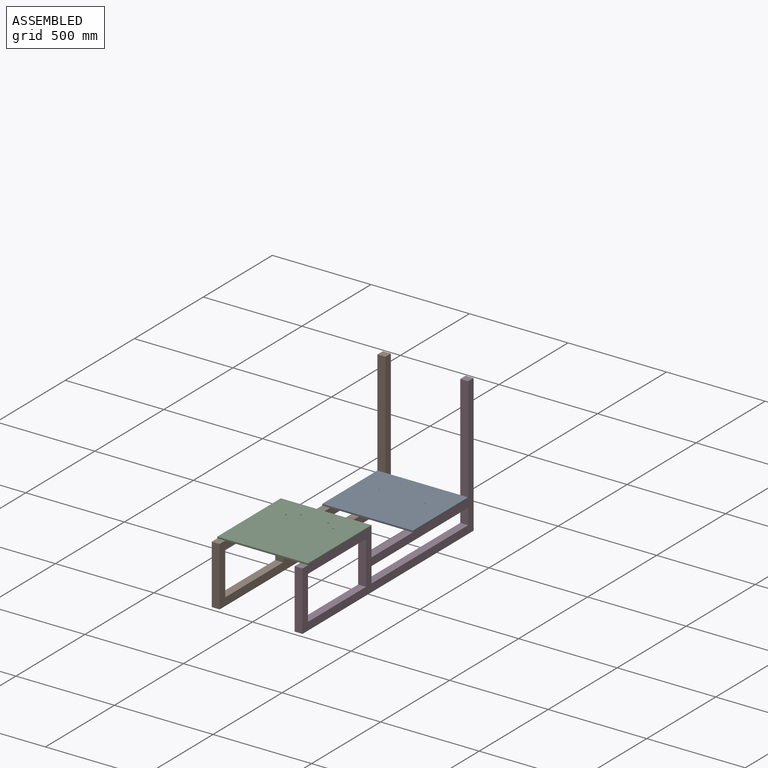
[diagram: assembled view]
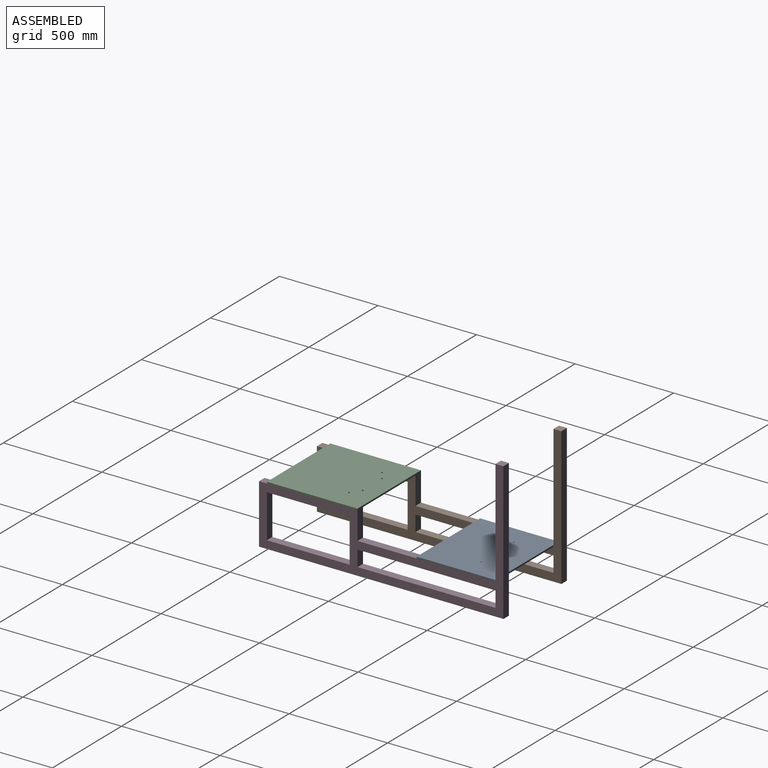
[diagram: assembled view, second angle]
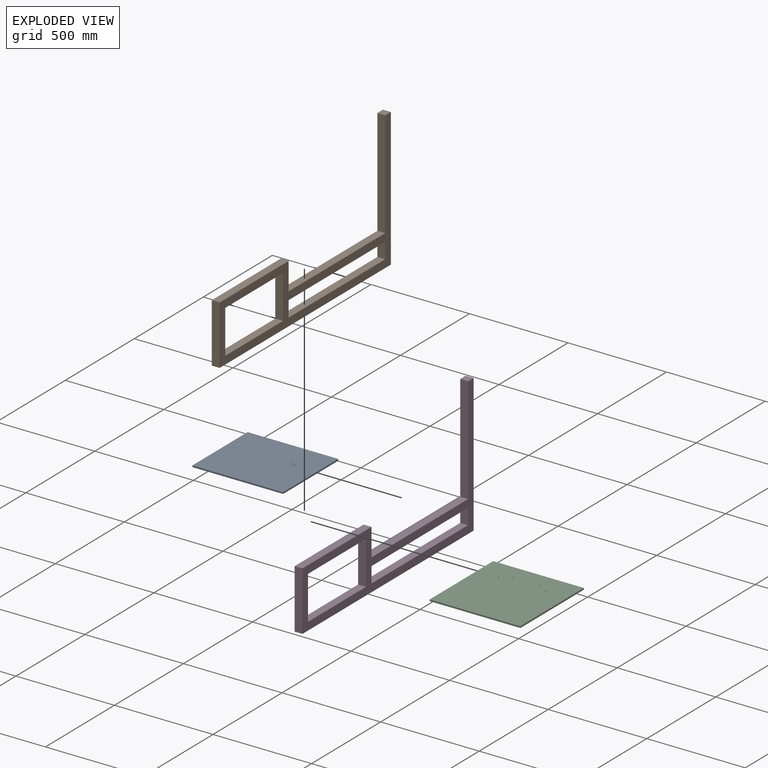
[diagram: exploded view]
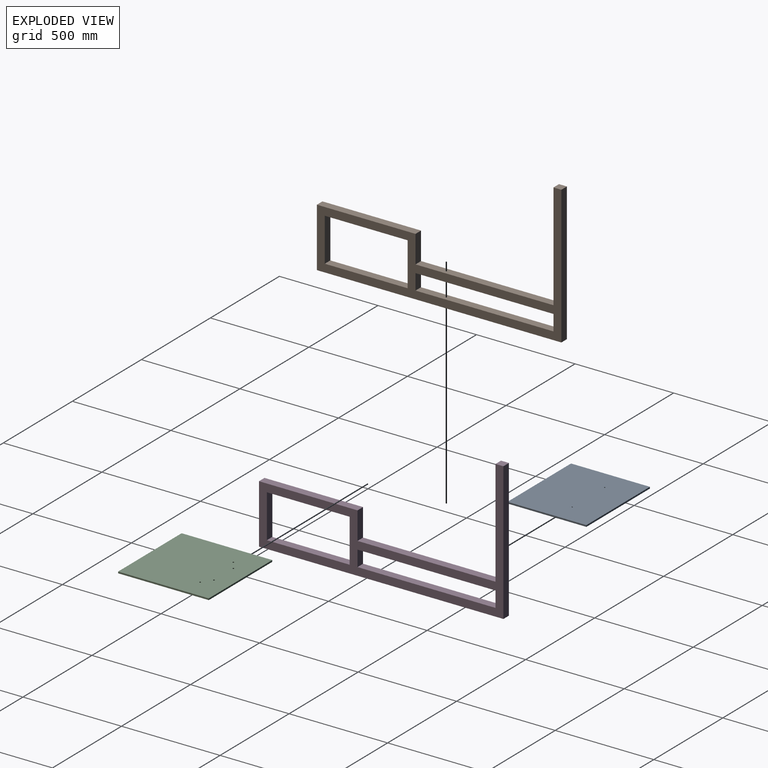
[diagram: exploded view, second angle]
ASSEMBLY  parts=4 mates=2
PART A: 8 faces, bbox 460x400x8 mm
  f0: plane 400x8mm, normal (-1,0,0), area 3200mm2, adj f1,f3,f4,f5
  f1: plane 460x8mm, normal (0,-1,0), area 3680mm2, adj f0,f2,f4,f5
  f2: plane 400x8mm, normal (1,0,0), area 3200mm2, adj f1,f3,f4,f5
  f3: plane 460x8mm, normal (0,1,0), area 3680mm2, adj f0,f2,f4,f5
  f4: plane 460x400mm, normal (0,0,1), area 183943.5mm2, adj f0,f1,f2,f3,f6,f7
  f5: plane 460x400mm, normal (0,0,-1), area 183943.5mm2, adj f0,f1,f2,f3,f6,f7
  f6: cylinder r=3mm len=8mm, axis (0,0,1), area 150.8mm2, adj f4,f5
  f7: cylinder r=3mm len=8mm, axis (0,0,1), area 150.8mm2, adj f4,f5
PART B: 18 faces, bbox 40x1240x700 mm
  f0: plane 700x40mm, normal (0,0,1), area 28000mm2, adj f1,f2,f4,f14
  f1: plane 80x40mm, normal (0,-1,0), area 3200mm2, adj f0,f2,f4,f15
  f2: plane 1240x700mm, normal (-1,0,0), area 141600mm2, adj f0,f1,f3,f5,f6,f7,f8,f9
  f3: plane 700x40mm, normal (0,1,0), area 28000mm2, adj f2,f4,f6,f7
  f4: plane 1240x700mm, normal (1,0,0), area 141600mm2, adj f0,f1,f3,f5,f6,f7,f8,f9
  f5: plane 420x40mm, normal (0,0,1), area 16800mm2, adj f2,f4,f13,f16
  f6: plane 1240x40mm, normal (0,0,-1), area 49600mm2, adj f2,f3,f4,f17
  f7: plane 40x40mm, normal (0,0,1), area 1600mm2, adj f2,f3,f4,f8
  f8: plane 540x40mm, normal (0,-1,0), area 21600mm2, adj f2,f4,f7,f9
  f9: plane 700x40mm, normal (0,0,1), area 28000mm2, adj f2,f4,f8,f10
  f10: plane 140x40mm, normal (0,1,0), area 5600mm2, adj f2,f4,f9,f11
  f11: plane 500x40mm, normal (0,0,1), area 20000mm2, adj f2,f4,f10,f17
  f12: plane 420x40mm, normal (0,0,-1), area 16800mm2, adj f2,f4,f13,f16
  f13: plane 220x40mm, normal (0,-1,0), area 8800mm2, adj f2,f4,f5,f12
  f14: plane 80x40mm, normal (0,1,0), area 3200mm2, adj f0,f2,f4,f15
  f15: plane 700x40mm, normal (0,0,-1), area 28000mm2, adj f1,f2,f4,f14
  f16: plane 220x40mm, normal (0,1,0), area 8800mm2, adj f2,f4,f5,f12
  f17: plane 300x40mm, normal (0,-1,0), area 12000mm2, adj f2,f4,f6,f11
PART C: 10 faces, bbox 460x460x8 mm
  f0: plane 460x8mm, normal (-1,0,0), area 3680mm2, adj f1,f3,f4,f5
  f1: plane 460x8mm, normal (0,-1,0), area 3680mm2, adj f0,f2,f4,f5
  f2: plane 460x8mm, normal (1,0,0), area 3680mm2, adj f1,f3,f4,f5
  f3: plane 460x8mm, normal (0,1,0), area 3680mm2, adj f0,f2,f4,f5
  f4: plane 460x460mm, normal (0,0,1), area 211398.9mm2, adj f0,f1,f2,f3,f6,f7,f8,f9
  f5: plane 460x460mm, normal (0,0,-1), area 211398.9mm2, adj f0,f1,f2,f3,f6,f7,f8,f9
  f6: cylinder r=4mm len=8mm, axis (0,0,1), area 201.1mm2, adj f4,f5
  f7: cylinder r=4mm len=8mm, axis (0,0,1), area 201.1mm2, adj f4,f5
  f8: cylinder r=4mm len=8mm, axis (0,0,1), area 201.1mm2, adj f4,f5
  f9: cylinder r=4mm len=8mm, axis (0,0,1), area 201.1mm2, adj f4,f5
PART D: 18 faces, bbox 40x1240x700 mm
  f0: plane 700x40mm, normal (0,0,1), area 28000mm2, adj f1,f2,f4,f14
  f1: plane 80x40mm, normal (0,-1,0), area 3200mm2, adj f0,f2,f4,f15
  f2: plane 1240x700mm, normal (1,0,0), area 141600mm2, adj f0,f1,f3,f5,f6,f7,f8,f9
  f3: plane 700x40mm, normal (0,1,0), area 28000mm2, adj f2,f4,f6,f7
  f4: plane 1240x700mm, normal (-1,0,0), area 141600mm2, adj f0,f1,f3,f5,f6,f7,f8,f9
  f5: plane 420x40mm, normal (0,0,1), area 16800mm2, adj f2,f4,f13,f16
  f6: plane 1240x40mm, normal (0,0,-1), area 49600mm2, adj f2,f3,f4,f17
  f7: plane 40x40mm, normal (0,0,1), area 1600mm2, adj f2,f3,f4,f8
  f8: plane 540x40mm, normal (0,-1,0), area 21600mm2, adj f2,f4,f7,f9
  f9: plane 700x40mm, normal (0,0,1), area 28000mm2, adj f2,f4,f8,f10
  f10: plane 140x40mm, normal (0,1,0), area 5600mm2, adj f2,f4,f9,f11
  f11: plane 500x40mm, normal (0,0,1), area 20000mm2, adj f2,f4,f10,f17
  f12: plane 420x40mm, normal (0,0,-1), area 16800mm2, adj f2,f4,f13,f16
  f13: plane 220x40mm, normal (0,-1,0), area 8800mm2, adj f2,f4,f5,f12
  f14: plane 80x40mm, normal (0,1,0), area 3200mm2, adj f0,f2,f4,f15
  f15: plane 700x40mm, normal (0,0,-1), area 28000mm2, adj f1,f2,f4,f14
  f16: plane 220x40mm, normal (0,1,0), area 8800mm2, adj f2,f4,f5,f12
  f17: plane 300x40mm, normal (0,-1,0), area 12000mm2, adj f2,f4,f6,f11
PLACE A t=(35.54,283.01,94.37)mm
PLACE B t=(35.54,123.01,-65.63)mm fixed
PLACE C t=(35.54,-476.99,234.37)mm
PLACE D t=(35.54,123.01,-65.63)mm fixed
MATE planar D.f11 <-> C.f5  axis (0,0,-1) through (265.54,-16.99,234.37)mm
MATE planar A.f5 <-> B.f9  axis (0,0,-1) through (-194.46,683.01,94.37)mm
